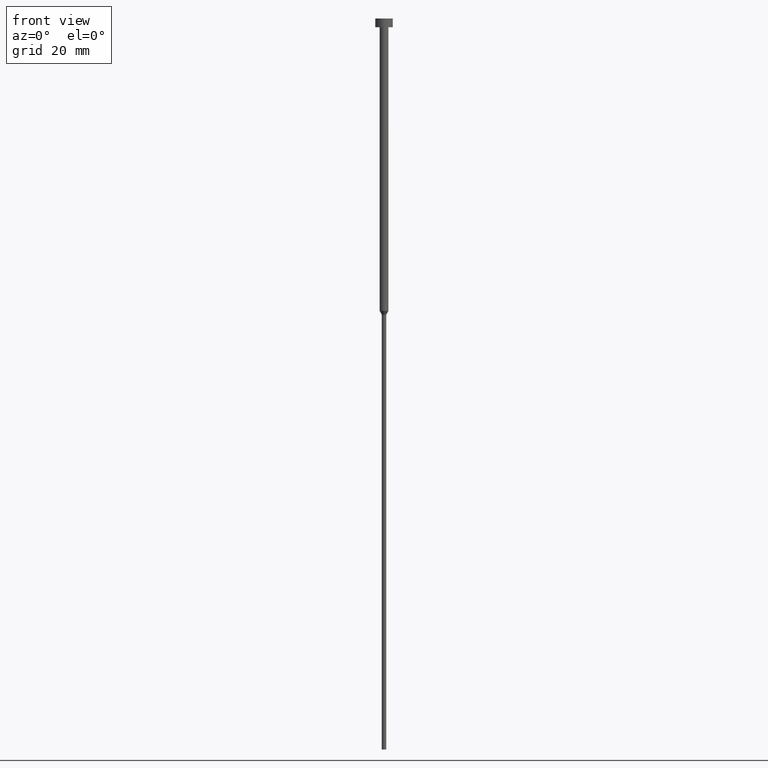
[diagram: clean part render]
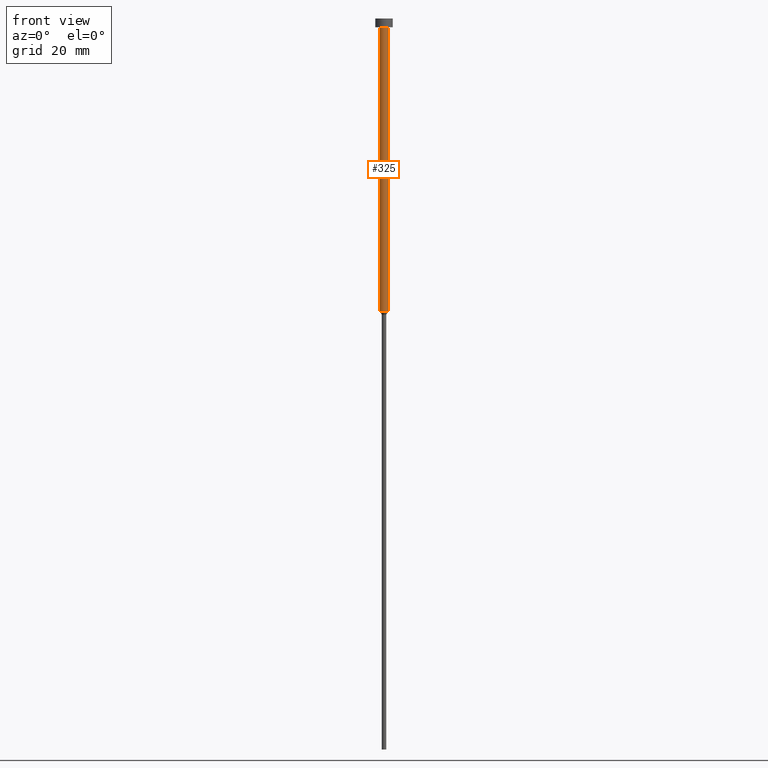
[diagram: same view with one face highlighted and labeled with its STEP entity id]
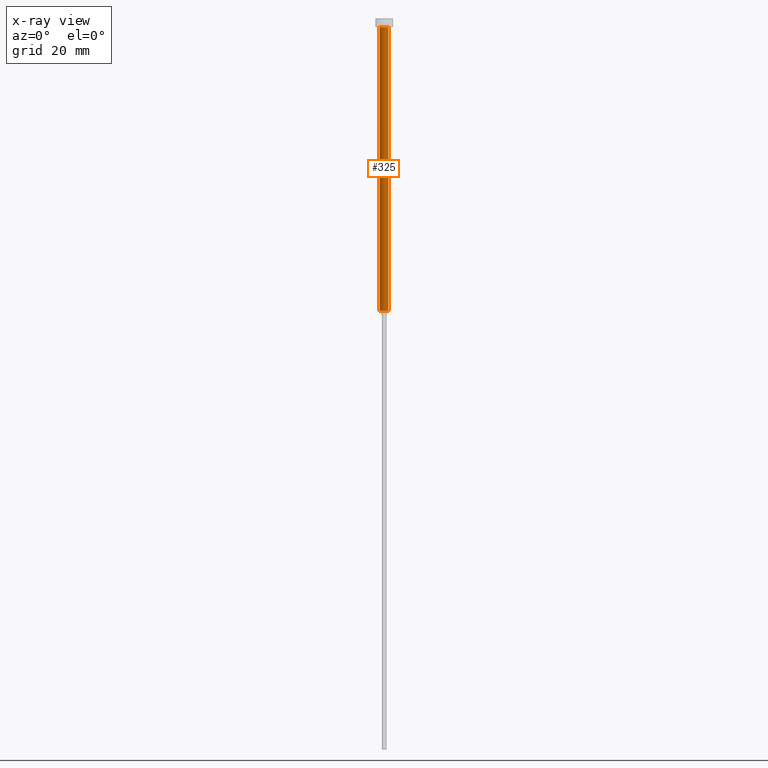
[diagram: x-ray of the same camera — body ghosted, the highlighted face saturated]
A machine part, front view. The second image highlights one B-rep face of the part: STEP entity #325.
The next image is the same camera in x-ray: the body ghosted, the highlighted face saturated — about 0% of this face is hidden behind the body in this view.
In plain terms, the highlighted cylindrical surface (edge-blend (fillet) strip) has radius 1.5 mm, axis along (-0, -0, 1).
Its self-contained STEP definition (entity closure, byte-faithful):
#17 = CARTESIAN_POINT ( 'NONE',  ( -1.500000000000000000, 1.836970198721029934E-16, 0.000000000000000000 ) ) ;
#34 = CARTESIAN_POINT ( 'NONE',  ( 1.500000000000000000, 0.000000000000000000, -3.000000000000000888 ) ) ;
#41 = EDGE_CURVE ( 'NONE', #131, #254, #63, .T. ) ;
#43 = DIRECTION ( 'NONE',  ( -0.000000000000000000, -0.000000000000000000, 1.000000000000000000 ) ) ;
#51 = DIRECTION ( 'NONE',  ( -0.000000000000000000, -0.000000000000000000, 1.000000000000000000 ) ) ;
#58 = LINE ( 'NONE', #62, #353 ) ;
#62 = CARTESIAN_POINT ( 'NONE',  ( 1.500000000000000000, 0.000000000000000000, 0.000000000000000000 ) ) ;
#63 = LINE ( 'NONE', #17, #244 ) ;
#65 = DIRECTION ( 'NONE',  ( 1.000000000000000000, 0.000000000000000000, 0.000000000000000000 ) ) ;
#67 = VERTEX_POINT ( 'NONE', #34 ) ;
#71 = CIRCLE ( 'NONE', #251, 1.500000000000000000 ) ;
#77 = DIRECTION ( 'NONE',  ( 1.000000000000000000, 0.000000000000000000, 0.000000000000000000 ) ) ;
#84 = CARTESIAN_POINT ( 'NONE',  ( 1.500000000000000000, 0.000000000000000000, -100.0000000000000000 ) ) ;
#93 = CYLINDRICAL_SURFACE ( 'NONE', #172, 1.500000000000000000 ) ;
#96 = ORIENTED_EDGE ( 'NONE', *, *, #41, .F. ) ;
#112 = EDGE_CURVE ( 'NONE', #131, #230, #264, .T. ) ;
#114 = DIRECTION ( 'NONE',  ( -0.000000000000000000, -0.000000000000000000, 1.000000000000000000 ) ) ;
#120 = EDGE_LOOP ( 'NONE', ( #96, #309, #277, #333 ) ) ;
#131 = VERTEX_POINT ( 'NONE', #187 ) ;
#160 = CARTESIAN_POINT ( 'NONE',  ( 0.000000000000000000, 0.000000000000000000, -100.0000000000000000 ) ) ;
#164 = DIRECTION ( 'NONE',  ( -0.000000000000000000, -0.000000000000000000, 1.000000000000000000 ) ) ;
#172 = AXIS2_PLACEMENT_3D ( 'NONE', #284, #314, #65 ) ;
#187 = CARTESIAN_POINT ( 'NONE',  ( -1.500000000000000000, 1.836970198721029934E-16, -100.0000000000000000 ) ) ;
#209 = FACE_OUTER_BOUND ( 'NONE', #120, .T. ) ;
#230 = VERTEX_POINT ( 'NONE', #84 ) ;
#244 = VECTOR ( 'NONE', #43, 1000.000000000000000 ) ;
#248 = DIRECTION ( 'NONE',  ( 1.000000000000000000, 0.000000000000000000, 0.000000000000000000 ) ) ;
#251 = AXIS2_PLACEMENT_3D ( 'NONE', #302, #51, #248 ) ;
#254 = VERTEX_POINT ( 'NONE', #303 ) ;
#264 = CIRCLE ( 'NONE', #315, 1.500000000000000000 ) ;
#268 = EDGE_CURVE ( 'NONE', #254, #67, #71, .T. ) ;
#277 = ORIENTED_EDGE ( 'NONE', *, *, #286, .T. ) ;
#284 = CARTESIAN_POINT ( 'NONE',  ( 0.000000000000000000, 0.000000000000000000, 0.000000000000000000 ) ) ;
#286 = EDGE_CURVE ( 'NONE', #230, #67, #58, .T. ) ;
#302 = CARTESIAN_POINT ( 'NONE',  ( 0.000000000000000000, 0.000000000000000000, -3.000000000000000888 ) ) ;
#303 = CARTESIAN_POINT ( 'NONE',  ( -1.500000000000000000, 1.836970198721029934E-16, -3.000000000000000888 ) ) ;
#309 = ORIENTED_EDGE ( 'NONE', *, *, #112, .T. ) ;
#314 = DIRECTION ( 'NONE',  ( -0.000000000000000000, -0.000000000000000000, 1.000000000000000000 ) ) ;
#315 = AXIS2_PLACEMENT_3D ( 'NONE', #160, #164, #77 ) ;
#325 = ADVANCED_FACE ( 'NONE', ( #209 ), #93, .T. ) ;
#333 = ORIENTED_EDGE ( 'NONE', *, *, #268, .F. ) ;
#353 = VECTOR ( 'NONE', #114, 1000.000000000000000 ) ;